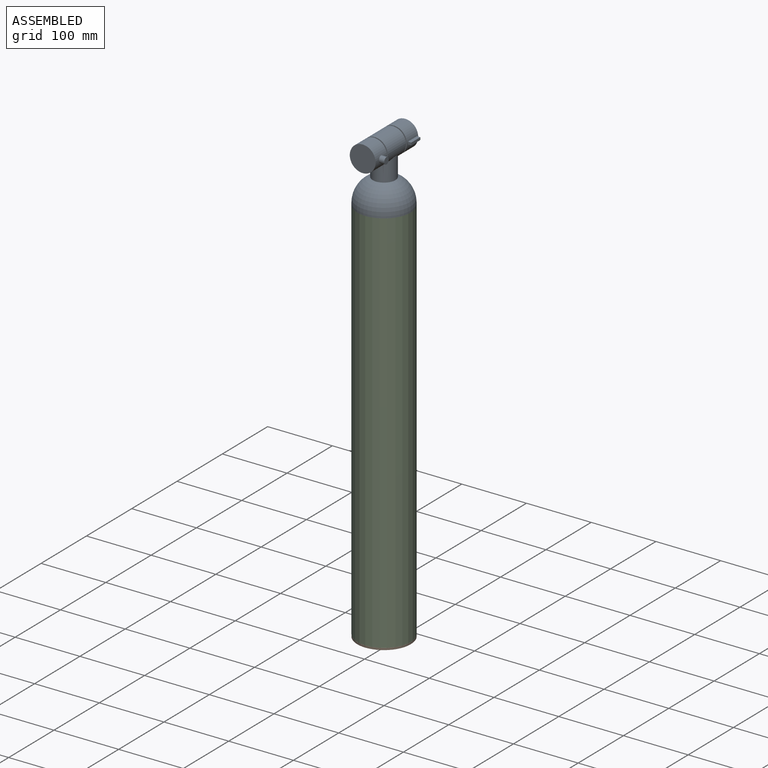
[diagram: assembled view]
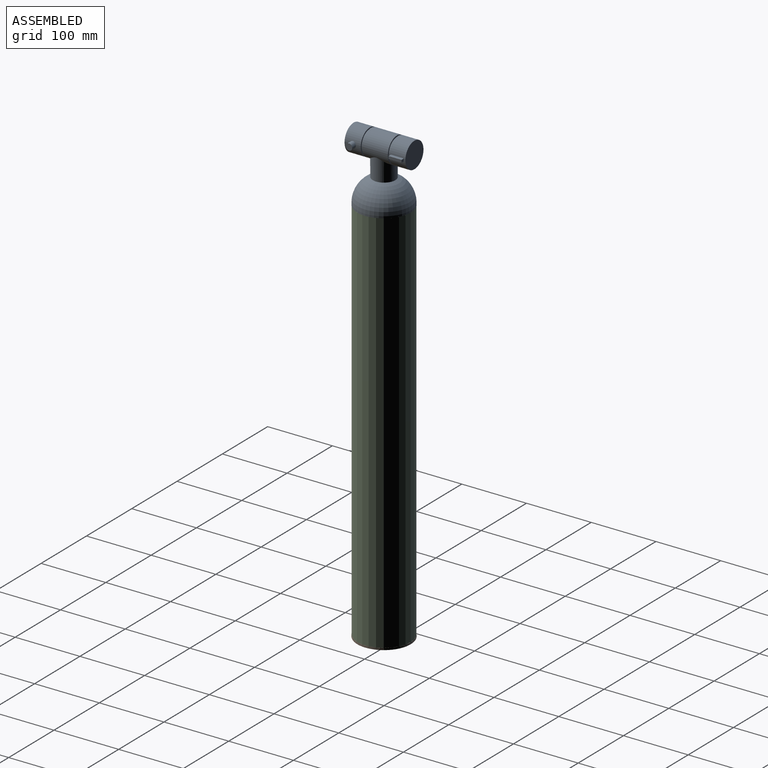
[diagram: assembled view, second angle]
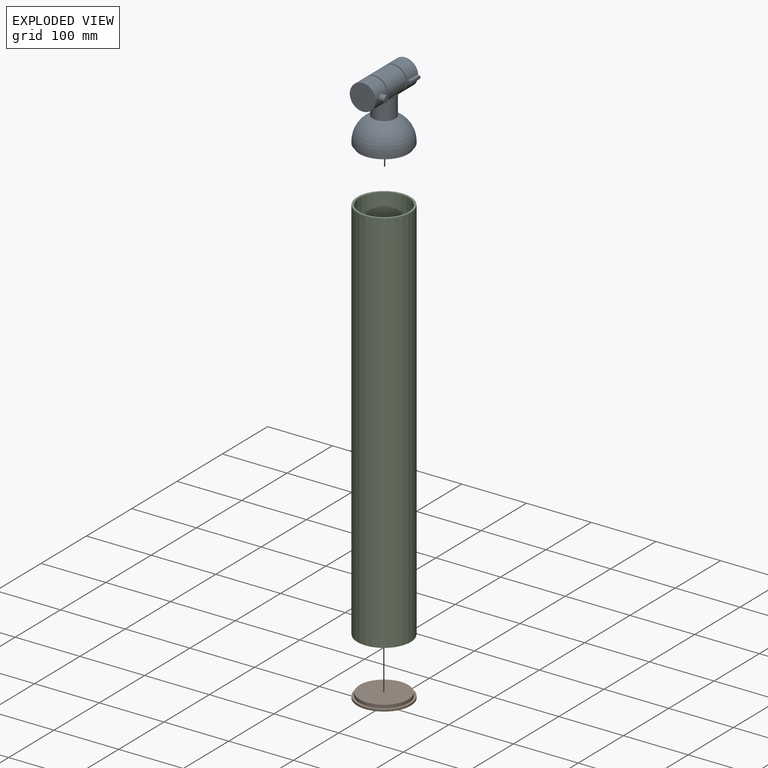
[diagram: exploded view]
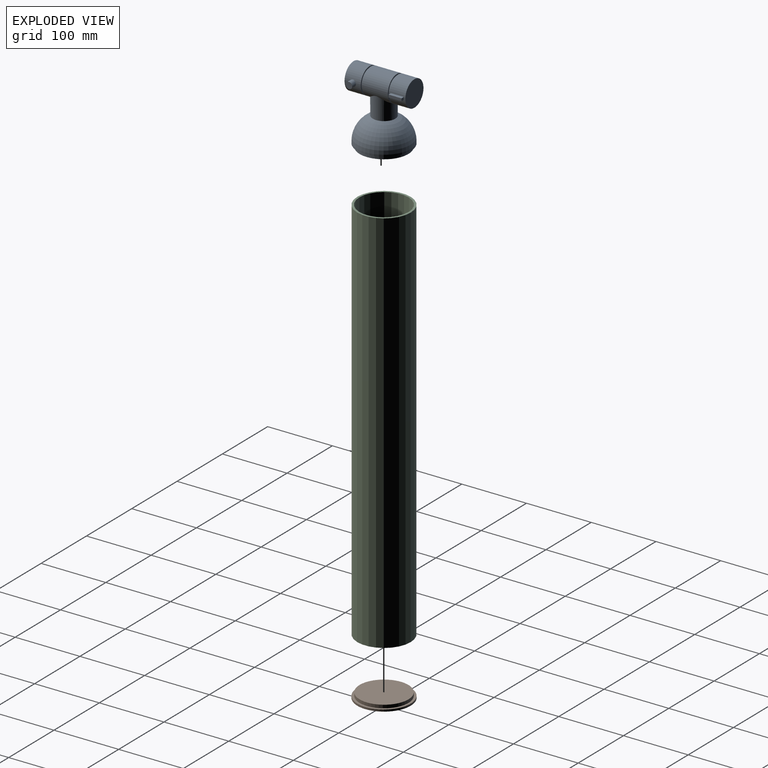
[diagram: exploded view, second angle]
ASSEMBLY  parts=3 mates=2
PART A: 24 faces, bbox 82.6x94x107 mm
  f0: cylinder r=20mm len=40mm, axis (0,1,0), area 3062.2mm2, adj f11,f12,f22
  f1: cylinder r=17.5mm len=35mm, axis (0,0,-1), area 3057mm2, adj f2,f7
  f2: torus R=2.27mm, axis (0,0,1), area 9450.5mm2, adj f1,f3
  f3: cylinder r=41.27mm len=82.55mm, axis (0,0,1), area 778mm2, adj f2,f4
  f4: plane 82.55x82.55mm, normal (0,0,-1), area 875.1mm2, adj f3,f5
  f5: cylinder r=37.75mm len=75.5mm, axis (0,0,1), area 1186mm2, adj f4,f6
  f6: plane 75.5x75.5mm, normal (0,0,-1), area 4477mm2, adj f5
  f7: cylinder r=20mm len=40mm, axis (0,1,0), area 3925mm2, adj f1,f8,f9
  f8: plane 40x40mm, normal (0,-1,0), area 238.8mm2, adj f7,f10
  f9: plane 40x40mm, normal (0,1,0), area 238.8mm2, adj f7,f13
  f10: cylinder r=18mm len=36mm, axis (0,1,0), area 226.2mm2, adj f8,f12
  f11: plane 40x40mm, normal (0,-1,0), area 1256.6mm2, adj f0
  f12: plane 40x40mm, normal (0,1,0), area 238.8mm2, adj f0,f10
  f13: cylinder r=18mm len=36mm, axis (0,-1,0), area 226.2mm2, adj f9,f16
  f14: cylinder r=20mm len=40mm, axis (0,-1,0), area 3061.5mm2, adj f15,f16,f17,f18,f19,f20
  f15: plane 40x40mm, normal (0,1,0), area 1256.6mm2, adj f14
  f16: plane 40x40mm, normal (0,-1,0), area 238.8mm2, adj f13,f14
  f17: plane 20x5.1mm, normal (0,0,1), area 102mm2, adj f14,f19,f20,f21
  f18: plane 20x5.1mm, normal (0,0,-1), area 102mm2, adj f14,f19,f20,f21
  f19: plane 5.1x4mm, normal (0,-1,0), area 20.1mm2, adj f14,f17,f18,f21
  f20: plane 5.1x4mm, normal (0,1,0), area 20.1mm2, adj f14,f17,f18,f21
  f21: plane 20x4mm, normal (1,0,0), area 80mm2, adj f17,f18,f19,f20
  f22: cylinder r=5mm len=10mm, axis (-1,0,0), area 261.3mm2, adj f0,f23
  f23: plane 10x10mm, normal (1,0,0), area 78.5mm2, adj f22
PART B: 5 faces, bbox 82.6x8x82.6 mm
  f0: cylinder r=41.27mm len=82.55mm, axis (0,1,0), area 778mm2, adj f1,f2
  f1: plane 82.55x82.55mm, normal (0,-1,0), area 875.1mm2, adj f0,f3
  f2: plane 82.55x82.55mm, normal (0,1,0), area 5352.1mm2, adj f0
  f3: cylinder r=37.75mm len=75.5mm, axis (0,1,0), area 1186mm2, adj f1,f4
  f4: plane 75.5x75.5mm, normal (0,-1,0), area 4477mm2, adj f3
PART C: 4 faces, bbox 82.6x600x82.6 mm
  f0: cylinder r=38.1mm len=600mm, axis (0,1,0), area 143633.6mm2, adj f2,f3
  f1: cylinder r=41.27mm len=600mm, axis (0,1,0), area 155603.1mm2, adj f2,f3
  f2: plane 82.55x82.55mm, normal (0,-1,0), area 791.7mm2, adj f0,f1
  f3: plane 82.55x82.55mm, normal (0,1,0), area 791.7mm2, adj f0,f1
PLACE A t=(0,0,302)mm
PLACE B rot(axis=(-1,0,0),90deg) t=(0,0,-303)mm
PLACE C rot(axis=(1,0,0),90deg) t=(0,0,0)mm
MATE fastened C.f0 <-> B.f3  axis (0,0,1) through (0,0,-300)mm
MATE fastened A.f5 <-> C.f1  axis (0,0,-1) through (0,0,300)mm
